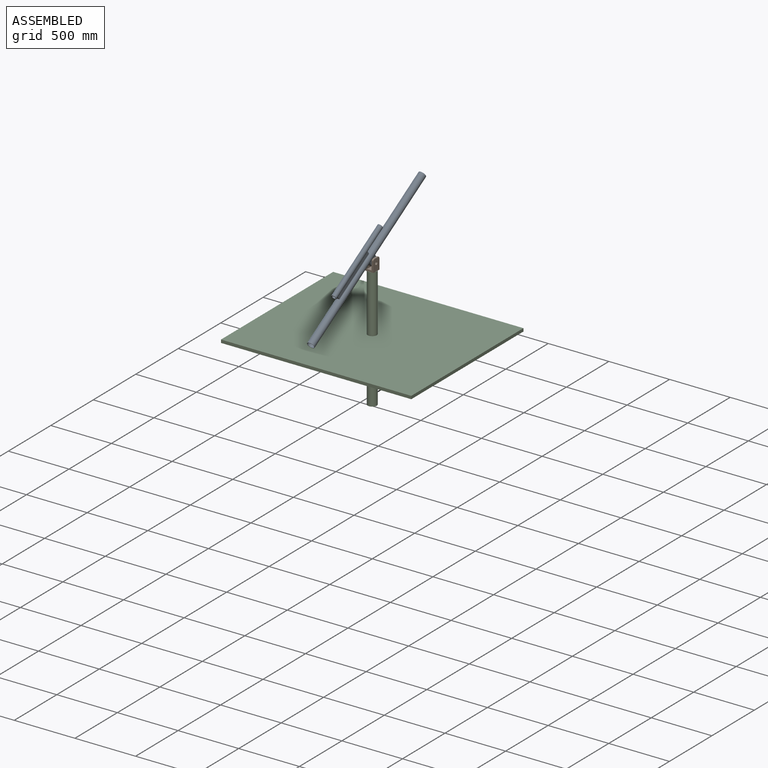
[diagram: assembled view]
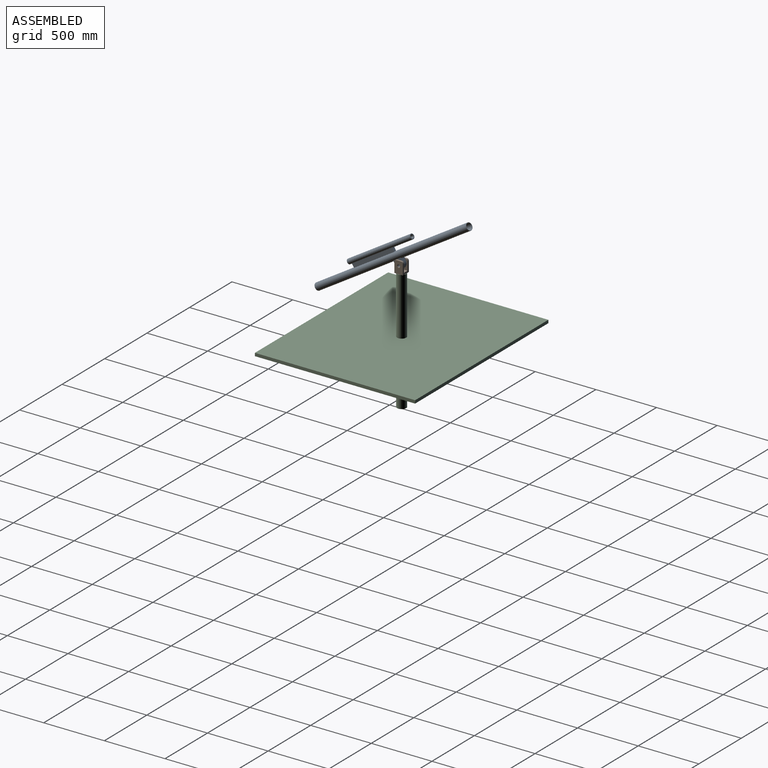
[diagram: assembled view, second angle]
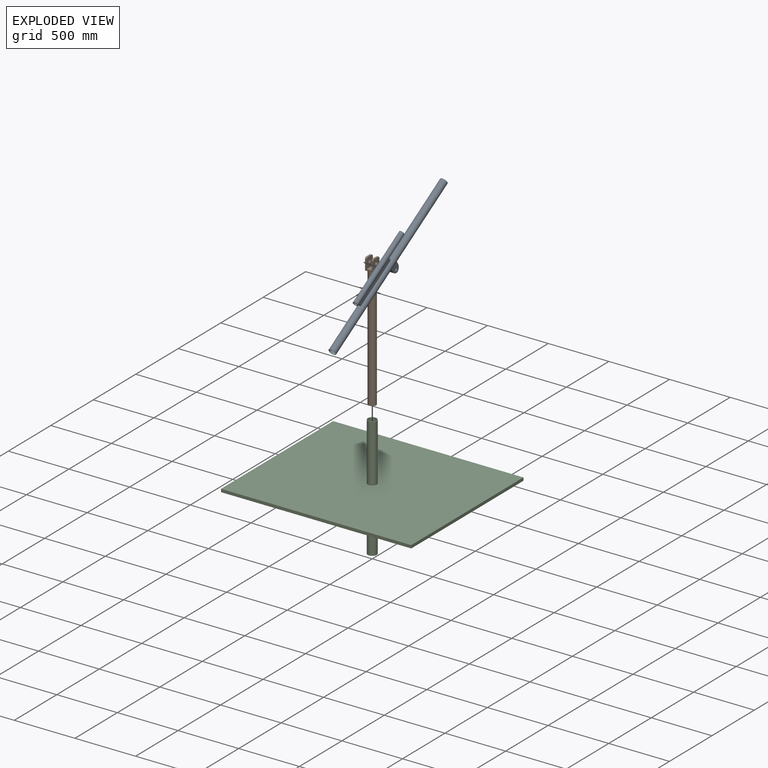
[diagram: exploded view]
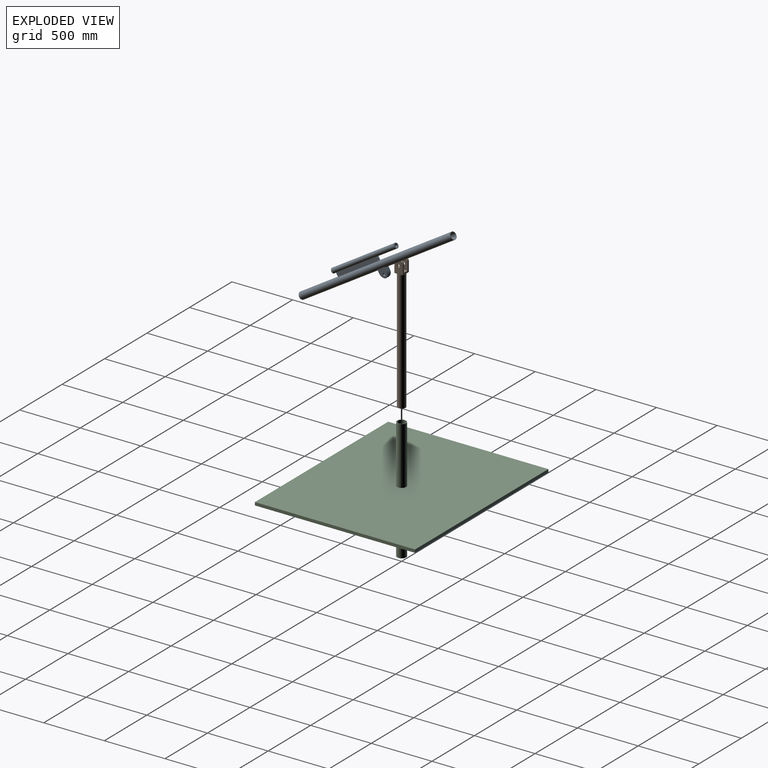
[diagram: exploded view, second angle]
ASSEMBLY  parts=3 mates=2
PART A: 29 faces, bbox 60x1500x199.7 mm
  f0: plane 76.08x70mm, normal (1,0,0), area 4051.6mm2, adj f2,f3,f4,f5,f14,f15
  f1: plane 76.08x70mm, normal (-1,0,0), area 4051.6mm2, adj f2,f3,f4,f5,f14,f15
  f2: plane 39x32.2mm, normal (0,-1,0), area 1063.6mm2, adj f0,f1,f5,f15
  f3: plane 39x32.2mm, normal (0,1,0), area 1063.6mm2, adj f0,f1,f5,f14
  f4: cylinder r=12.5mm len=39mm, axis (1,0,0), area 3063.1mm2, adj f0,f1
  f5: cylinder r=30mm len=1500mm, axis (0,1,0), area 271615.4mm2, adj f0,f1,f2,f3,f7,f8,f21,f22
  f6: cylinder r=27.5mm len=1500mm, axis (0,1,0), area 247959.1mm2, adj f7,f8,f10,f11,f12,f13,f17,f18
  f7: plane 60x60mm, normal (0,-1,0), area 451.6mm2, adj f5,f6
  f8: plane 60x60mm, normal (0,1,0), area 451.6mm2, adj f5,f6
  f9: plane 70x39mm, normal (0,0,1), area 2730mm2, adj f10,f11,f12,f13
  f10: plane 70x19.39mm, normal (1,0,0), area 1357.4mm2, adj f6,f9,f12,f13
  f11: plane 70x19.39mm, normal (-1,0,0), area 1357.4mm2, adj f6,f9,f12,f13
  f12: plane 39x27.5mm, normal (0,1,0), area 974.2mm2, adj f6,f9,f10,f11
  f13: plane 39x27.5mm, normal (0,-1,0), area 974.2mm2, adj f6,f9,f10,f11
  f14: cylinder r=45mm len=43.88mm, axis (1,0,0), area 2363.5mm2, adj f0,f1,f3,f15
  f15: cylinder r=45mm len=43.88mm, axis (-1,0,0), area 2363.5mm2, adj f0,f1,f2,f14
  f16: plane 400x20mm, normal (0,0,-1), area 8000mm2, adj f17,f18,f19,f20
  f17: plane 20x2.4mm, normal (0,1,0), area 35.7mm2, adj f6,f16,f19,f20
  f18: plane 20x2.4mm, normal (0,-1,0), area 35.7mm2, adj f6,f16,f19,f20
  f19: plane 400x0.52mm, normal (-1,0,0), area 208.9mm2, adj f6,f16,f17,f18
  f20: plane 400x0.52mm, normal (1,0,0), area 208.9mm2, adj f6,f16,f17,f18
  f21: plane 400x33.62mm, normal (1,0,0), area 13448.4mm2, adj f5,f23,f24,f26
  f22: plane 400x33.62mm, normal (-1,0,0), area 13448.4mm2, adj f5,f23,f24,f26
  f23: plane 33.62x20mm, normal (0,-1,0), area 614.7mm2, adj f5,f21,f22,f26
  f24: plane 33.62x20mm, normal (0,1,0), area 614.7mm2, adj f5,f21,f22,f26
  f25: cylinder r=15mm len=625mm, axis (0,-1,0), area 58904.9mm2, adj f27,f28
  f26: cylinder r=20.76mm len=625mm, axis (0,-1,0), area 73167.5mm2, adj f21,f22,f23,f24,f27,f28
  f27: plane 41.52x41.52mm, normal (0,1,0), area 646.8mm2, adj f25,f26
  f28: plane 41.52x41.52mm, normal (0,-1,0), area 646.8mm2, adj f25,f26
PART B: 20 faces, bbox 70x70x1100 mm
  f0: plane 40x15mm, normal (0,0,1), area 600mm2, adj f9,f11,f18,f19
  f1: plane 85x70mm, normal (0,1,0), area 3150mm2, adj f5,f7,f9,f11,f12,f13,f17,f19
  f2: cylinder r=27mm len=1000mm, axis (0,0,-1), area 169646mm2, adj f4,f10
  f3: cylinder r=32mm len=1000mm, axis (0,0,-1), area 201061.9mm2, adj f4,f5
  f4: plane 64x64mm, normal (0,0,-1), area 926.8mm2, adj f2,f3
  f5: plane 70x70mm, normal (0,0,-1), area 1683mm2, adj f1,f3,f7,f8,f9
  f6: plane 40x15mm, normal (0,0,1), area 600mm2, adj f7,f13,f16,f17
  f7: plane 100x70mm, normal (1,0,0), area 6412.6mm2, adj f1,f5,f6,f8,f14,f16,f17
  f8: plane 85x70mm, normal (0,-1,0), area 3150mm2, adj f5,f7,f9,f11,f12,f13,f16,f18
  f9: plane 100x70mm, normal (-1,0,0), area 6412.6mm2, adj f0,f1,f5,f8,f15,f18,f19
  f10: plane 54x54mm, normal (0,0,-1), area 2290.2mm2, adj f2
  f11: plane 85x70mm, normal (1,0,0), area 5362.6mm2, adj f0,f1,f8,f12,f15,f18,f19
  f12: plane 70x40mm, normal (0,0,1), area 2800mm2, adj f1,f8,f11,f13
  f13: plane 85x70mm, normal (-1,0,0), area 5362.6mm2, adj f1,f6,f8,f12,f14,f16,f17
  f14: cylinder r=12.5mm len=25mm, axis (1,0,0), area 1178.1mm2, adj f7,f13
  f15: cylinder r=12.5mm len=25mm, axis (1,0,0), area 1178.1mm2, adj f9,f11
  f16: cylinder r=15mm len=15mm, axis (-1,0,0), area 353.4mm2, adj f6,f7,f8,f13
  f17: cylinder r=15mm len=15mm, axis (1,0,0), area 353.4mm2, adj f1,f6,f7,f13
  f18: cylinder r=15mm len=15mm, axis (-1,0,0), area 353.4mm2, adj f0,f8,f9,f11
  f19: cylinder r=15mm len=15mm, axis (1,0,0), area 353.4mm2, adj f0,f1,f9,f11
PART C: 14 faces, bbox 1568.6x1320.5x1000 mm
  f0: cylinder r=32.5mm len=475mm, axis (0,0,-1), area 96996.7mm2, adj f2,f13
  f1: cylinder r=37.5mm len=475mm, axis (0,0,-1), area 111919.2mm2, adj f2,f4
  f2: plane 75x75mm, normal (0,0,1), area 1099.6mm2, adj f0,f1
  f3: plane 1568.56x1320.54mm, normal (0,0,-1), area 2066925.5mm2, adj f5,f6,f7,f8,f11
  f4: plane 1568.56x1320.54mm, normal (0,0,1), area 2066925.5mm2, adj f1,f5,f6,f7,f8
  f5: plane 1320.54x25mm, normal (1,0,0), area 33013.6mm2, adj f3,f4,f6,f8
  f6: plane 1568.56x25mm, normal (0,-1,0), area 39213.9mm2, adj f3,f4,f5,f7
  f7: plane 1320.54x25mm, normal (-1,0,0), area 33013.6mm2, adj f3,f4,f6,f8
  f8: plane 1568.56x25mm, normal (0,1,0), area 39213.9mm2, adj f3,f4,f5,f7
  f9: cylinder r=32.5mm len=500mm, axis (0,0,-1), area 102101.8mm2, adj f10,f12
  f10: plane 75x75mm, normal (0,0,-1), area 1099.6mm2, adj f9,f11
  f11: cylinder r=37.5mm len=500mm, axis (0,0,-1), area 117809.7mm2, adj f3,f10
  f12: plane 65x65mm, normal (0,0,-1), area 3318.3mm2, adj f9
  f13: plane 65x65mm, normal (0,0,1), area 3318.3mm2, adj f0
PLACE A rot(axis=(1,-0.01,-0.04),32.1deg) t=(1.25,-10.67,577.94)mm
PLACE B rot(axis=(0,0,-1),1.3deg) t=(0,0,-499)mm
PLACE C at identity fixed
MATE revolute A.f4 <-> B.f14  axis (1,-0.02,0) through (20.99,-0.49,561)mm
MATE revolute C.f1 <-> B.f3  axis (0,0,-1) through (0,0,500)mm
